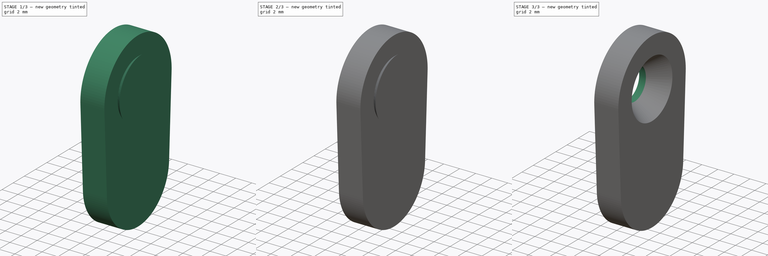
[diagram: build sequence overview — one tinted view per stage of 3, left to right]
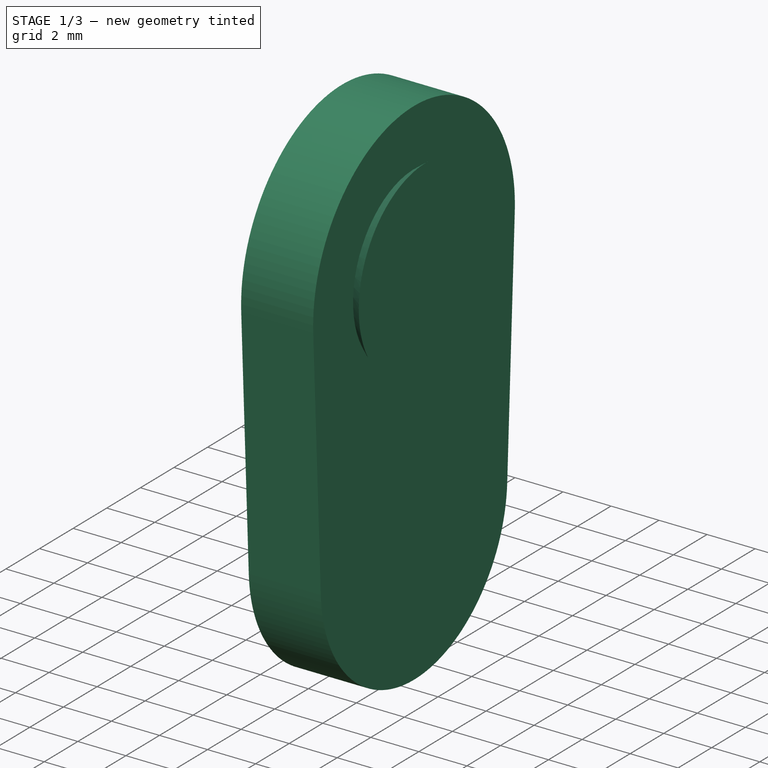
[diagram: stage 1 of 3 — iso view after this stage's code; geometry added in this stage tinted green]
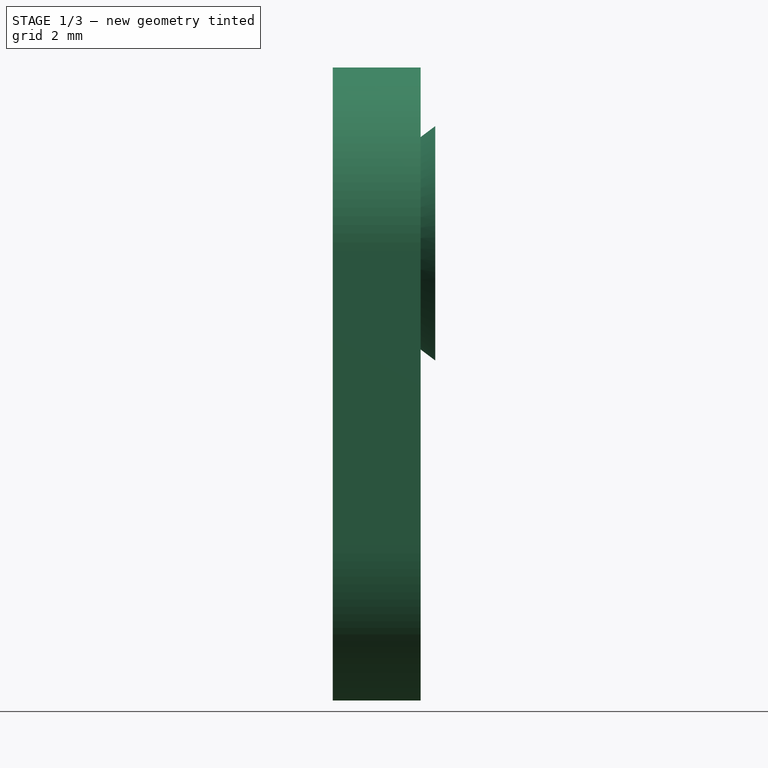
[diagram: stage 1 of 3 — front view after this stage's code; geometry added in this stage tinted green]
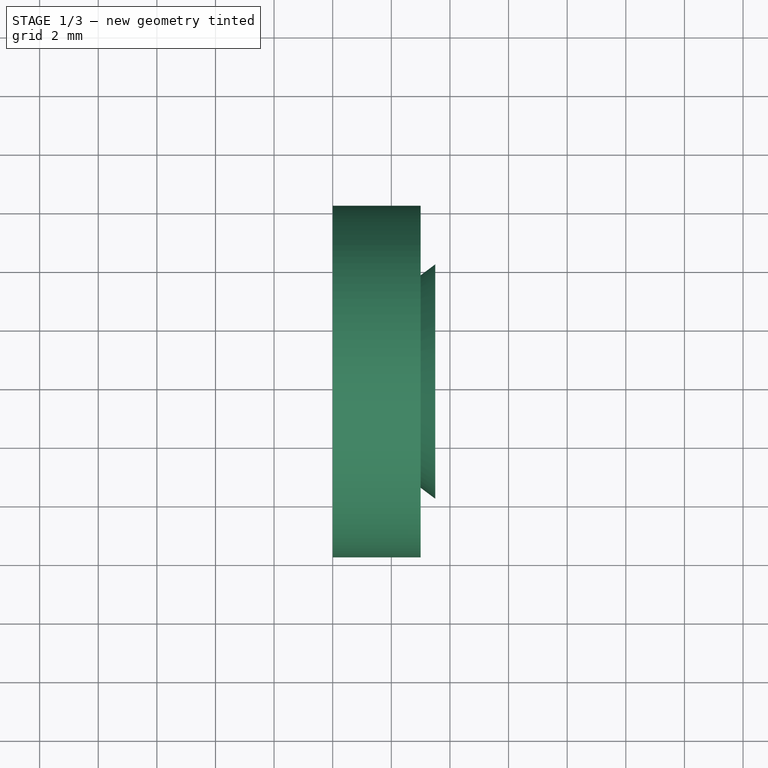
[diagram: stage 1 of 3 — top view after this stage's code; geometry added in this stage tinted green]
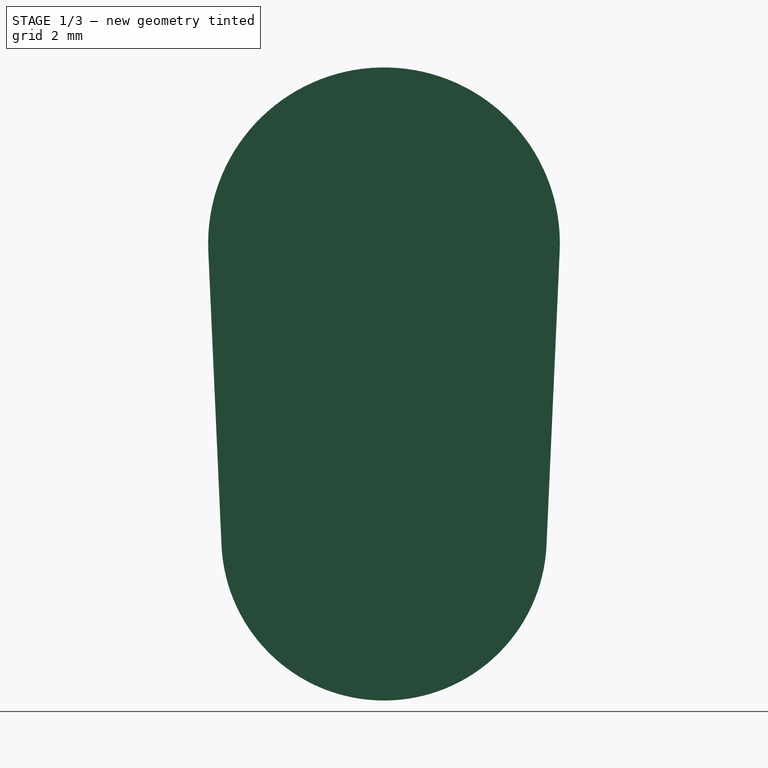
[diagram: stage 1 of 3 — right view after this stage's code; geometry added in this stage tinted green]
FCSTD DOCUMENT  (FreeCAD 0.16R6704 (Git))
Label: Halterung Front und Seitenscheiben oben
License: All rights reserved
LicenseURL: http://en.wikipedia.org/wiki/All_rights_reserved
objects: Sketcher::SketchObject×5, PartDesign::Pocket×2, PartDesign::Pad×1, Part::Loft×1, Part::Cut×1
note: 13 computed .brp shape members not serialized (recipe doc carries the construction recipe); baked Part::Feature solids carry a one-line shape summary decoded from their .brp

FEATURE [Sketcher::SketchObject] Sketch
  Placement = pos=(0,0,0) rot=(0.57735,0.57735,0.57735;2.0944rad)
  sketch-geometry (8):
    g0: Circle [constr] CenterX=0 CenterY=0 CenterZ=0 NormalX=0 NormalY=0 NormalZ=1 Radius=3.05
    g1: Circle [constr] CenterX=0 CenterY=0 CenterZ=0 NormalX=0 NormalY=0 NormalZ=1 Radius=5.55
    g2: Circle [constr] CenterX=0 CenterY=10.05 CenterZ=0 NormalX=0 NormalY=0 NormalZ=1 Radius=6
    g3: LineSegment [constr] StartX=0 StartY=4.05 StartZ=0 EndX=0 EndY=5.55 EndZ=0
    g4: LineSegment StartX=-5.99398 StartY=9.78137 StartZ=0 EndX=-5.54443 EndY=-0.248507 EndZ=0
    g5: LineSegment StartX=5.99398 StartY=9.78137 StartZ=0 EndX=5.54443 EndY=-0.248507 EndZ=0
    g6: ArcOfCircle CenterX=0 CenterY=0 CenterZ=0 NormalX=0 NormalY=0 NormalZ=1 Radius=5.55 StartAngle=3.18638 EndAngle=6.23839
    g7: ArcOfCircle CenterX=0 CenterY=10.05 CenterZ=0 NormalX=0 NormalY=0 NormalZ=1 Radius=6 StartAngle=6.2384 EndAngle=9.46956
  constraints (23):
    c: Coincident(g0,g-1)
    c: Coincident(g1,g-1)
    c: PointOnObject(g2,g-2)
    c: Radius(g0) = 3.05
    c: Radius(g2) = 6
    c: Radius(g1) = 5.55
    c: PointOnObject(g3,g2)
    c: PointOnObject(g3,g1)
    c: Vertical(g3)
    c: PointOnObject(g3,g-2)
    c: Coincident(g6,g-1)
    c: Coincident(g6,g4)
    c: Coincident(g6,g5)
    c: Coincident(g7,g2)
    c: Coincident(g7,g4)
    c: Coincident(g7,g5)
    c: Tangent(g4,g7)
    c: Tangent(g6,g4)
    c: Tangent(g5,g6)
    c: Tangent(g5,g7)
    c: PointOnObject(g5,g1)
    c: PointOnObject(g5,g2)
    c: DistanceY(g3,g3) = 1.5
FEATURE [PartDesign::Pad] Pad  label="Grundkoerper"
  Length = 3
  Length2 = 100
  Placement = pos=(0,0,0) rot=(0.57735,0.57735,0.57735;2.0944rad)
  Sketch = -> Sketch
  Type = 0
FEATURE [Sketcher::SketchObject] Sketch003
  Placement = pos=(0.5,0,0) rot=(0.57735,0.57735,0.57735;2.0944rad)
  sketch-geometry (1):
    g0: Circle CenterX=0 CenterY=10.05 CenterZ=0 NormalX=0 NormalY=0 NormalZ=1 Radius=1.75
  constraints (3):
    c: PointOnObject(g0,g-2)
    c: Radius(g0) = 1.75
    c: DistanceY(g-1,g0) = 10.05
FEATURE [Sketcher::SketchObject] Sketch004
  Placement = pos=(3.5,0,0) rot=(0.57735,0.57735,0.57735;2.0944rad)
  sketch-geometry (1):
    g0: Circle CenterX=0 CenterY=10.05 CenterZ=0 NormalX=0 NormalY=0 NormalZ=1 Radius=4
  constraints (3):
    c: PointOnObject(g0,g-2)
    c: DistanceY(g-1,g0) = 10.05
    c: Radius(g0) = 4
FEATURE [Part::Loft] Loft  label="Schraubenkopf"
  Closed = false
  Ruled = false
  Sections = -> [Sketch003,Sketch004]
  Solid = true
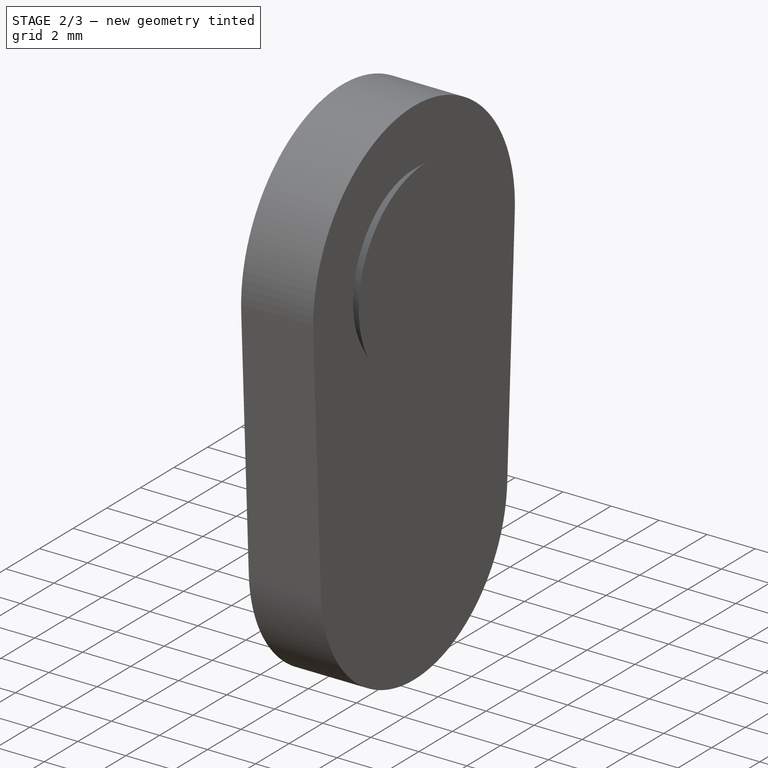
[diagram: stage 2 of 3 — iso view after this stage's code; geometry added in this stage tinted green]
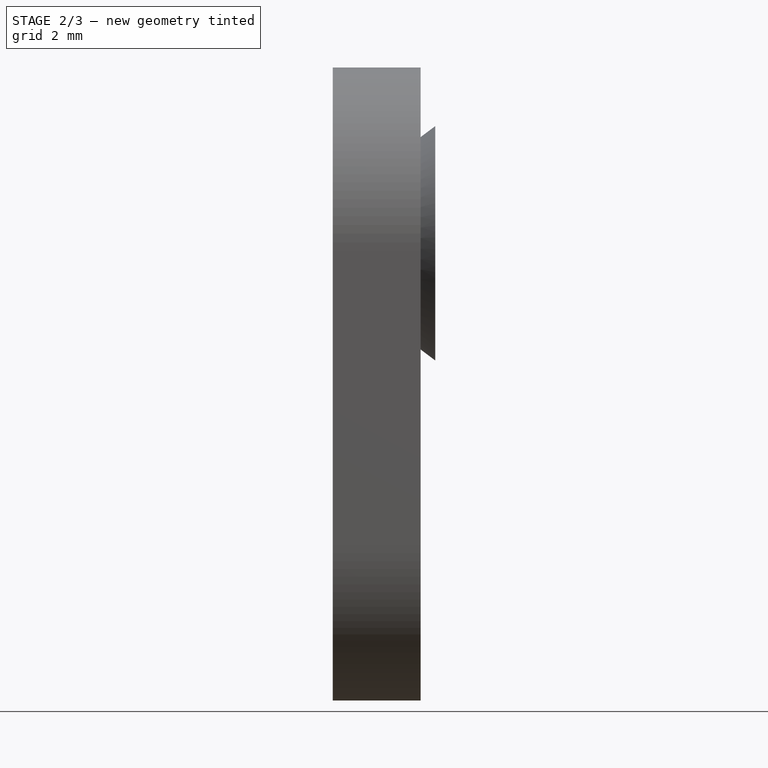
[diagram: stage 2 of 3 — front view after this stage's code; geometry added in this stage tinted green]
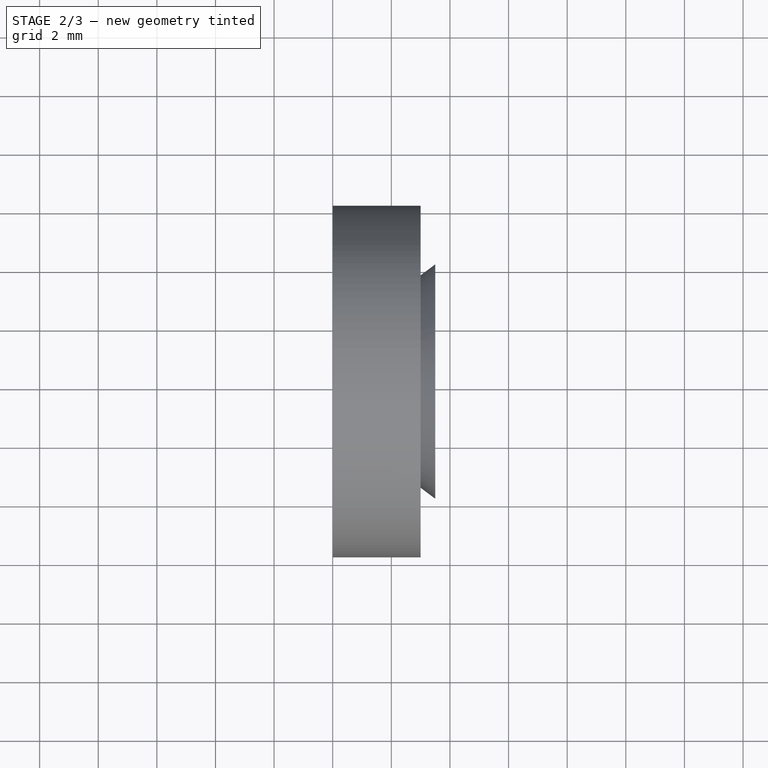
[diagram: stage 2 of 3 — top view after this stage's code; geometry added in this stage tinted green]
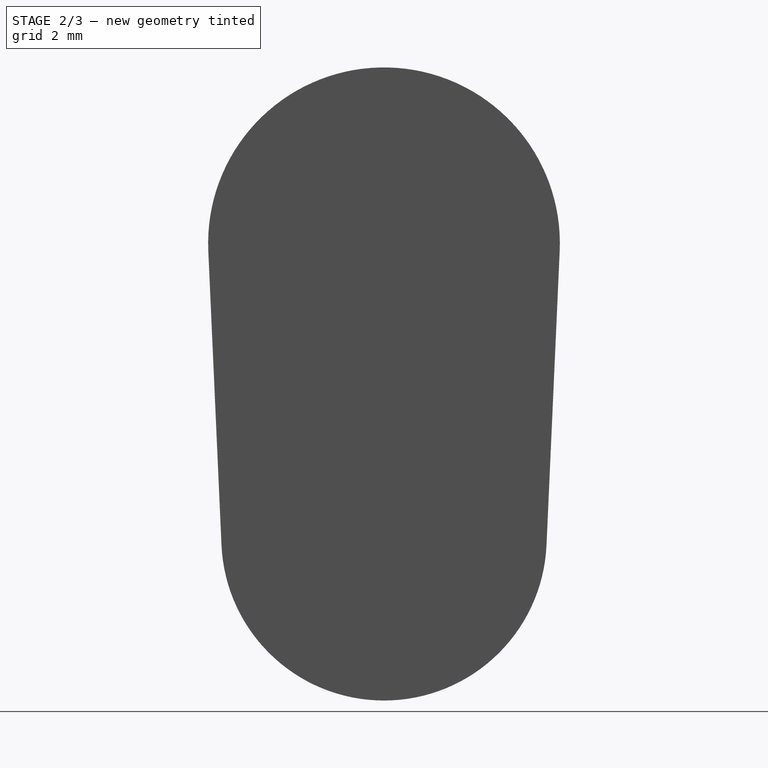
[diagram: stage 2 of 3 — right view after this stage's code; geometry added in this stage tinted green]
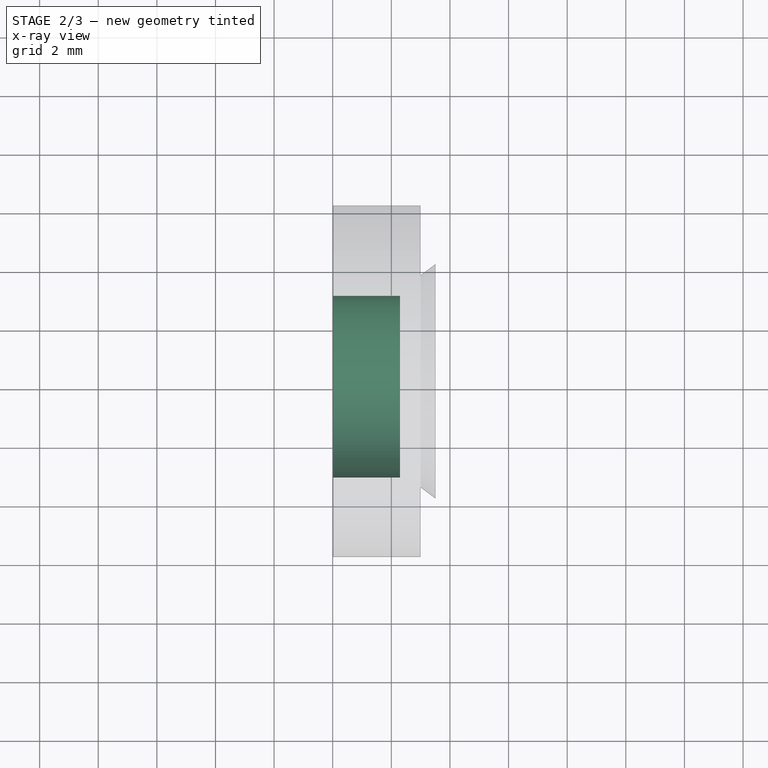
[diagram: stage 2 of 3 — x-ray composite at the top view; earlier geometry ghosted, this stage's added geometry solid]
FEATURE [Sketcher::SketchObject] Sketch001
  Placement = pos=(0,0,0) rot=(0.57735,0.57735,-0.57735;4.18879rad)
  Support = -> Pad [Face5]
  sketch-geometry (1):
    g0: Circle CenterX=0 CenterY=0 CenterZ=0 NormalX=0 NormalY=0 NormalZ=1 Radius=3.1
  constraints (2):
    c: Coincident(g0,g-1)
    c: Radius(g0) = 3.1
FEATURE [PartDesign::Pocket] Pocket  label="Tasche Magnet"
  Length = 2.3
  Placement = pos=(0,0,0) rot=(0.57735,0.57735,0.57735;2.0944rad)
  Sketch = -> Sketch001
  Type = 0
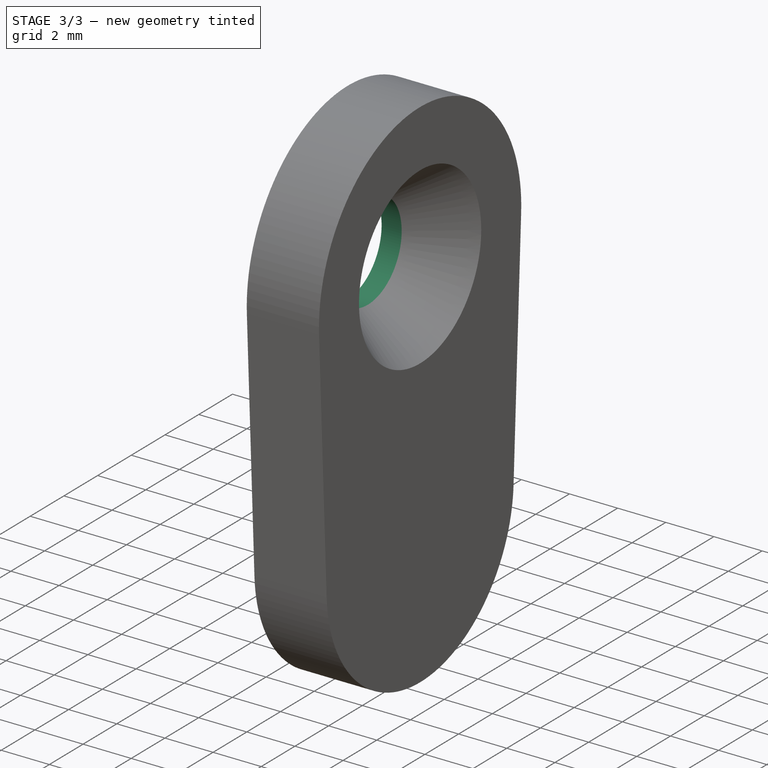
[diagram: stage 3 of 3 — iso view after this stage's code; geometry added in this stage tinted green]
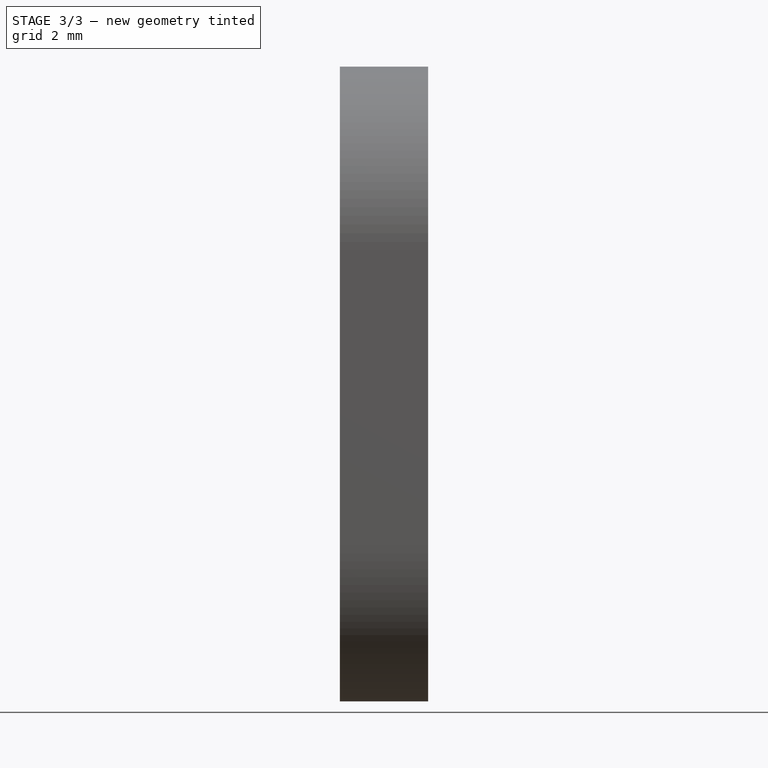
[diagram: stage 3 of 3 — front view after this stage's code; geometry added in this stage tinted green]
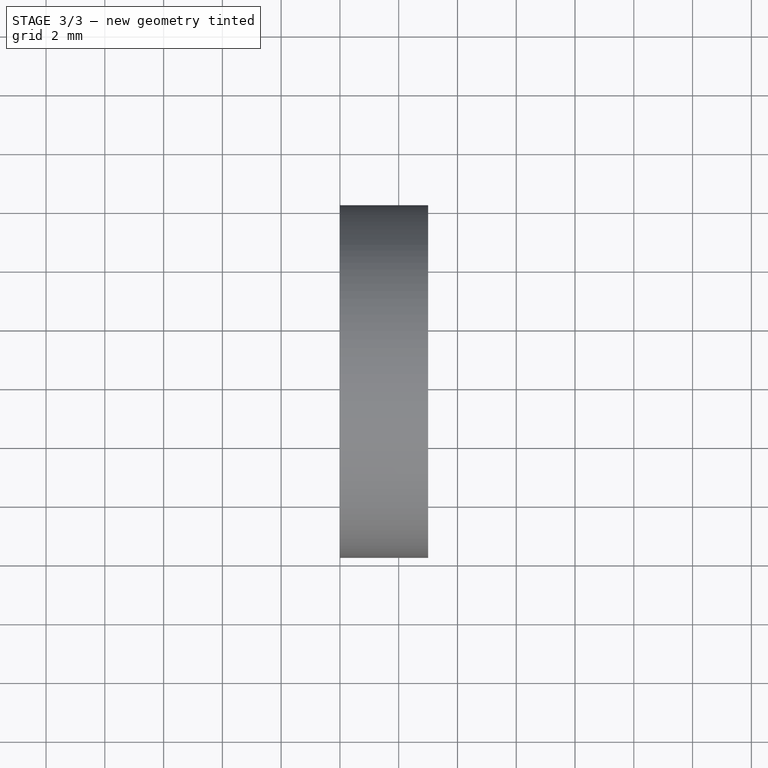
[diagram: stage 3 of 3 — top view after this stage's code; geometry added in this stage tinted green]
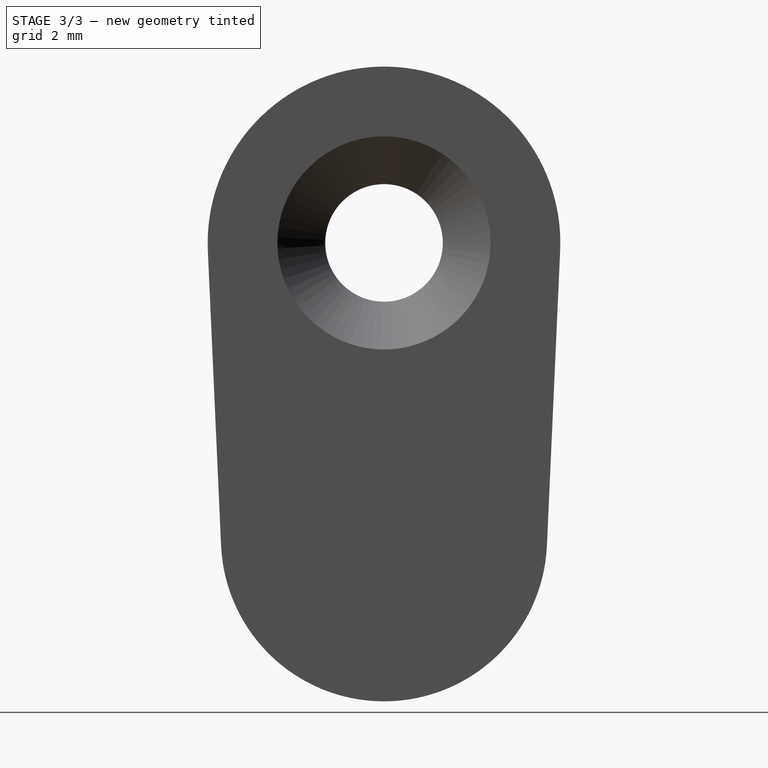
[diagram: stage 3 of 3 — right view after this stage's code; geometry added in this stage tinted green]
FEATURE [Sketcher::SketchObject] Sketch002
  ExternalGeometry = -> [Pocket]
  Placement = pos=(3,0,0) rot=(0.57735,0.57735,0.57735;2.0944rad)
  Support = -> Pocket [Face5]
  sketch-geometry (1):
    g0: Circle CenterX=0 CenterY=10.05 CenterZ=0 NormalX=0 NormalY=0 NormalZ=1 Radius=2
  constraints (2):
    c: Coincident(g0,g-3)
    c: Radius(g0) = 2
FEATURE [PartDesign::Pocket] Pocket001  label="Bohrung Schraube"
  Length = 5
  Placement = pos=(0,0,0) rot=(0.57735,0.57735,0.57735;2.0944rad)
  Sketch = -> Sketch002
  Type = 1
FEATURE [Part::Cut] Cut
  Base = -> Pocket001
  Tool = -> Loft
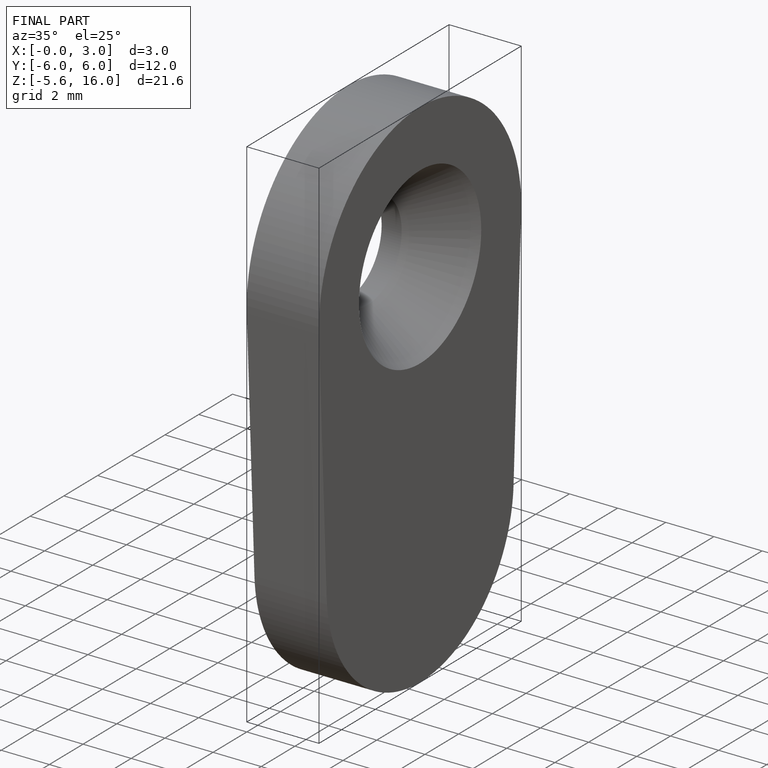
[diagram: finished part — iso view with bounding-box wireframe]
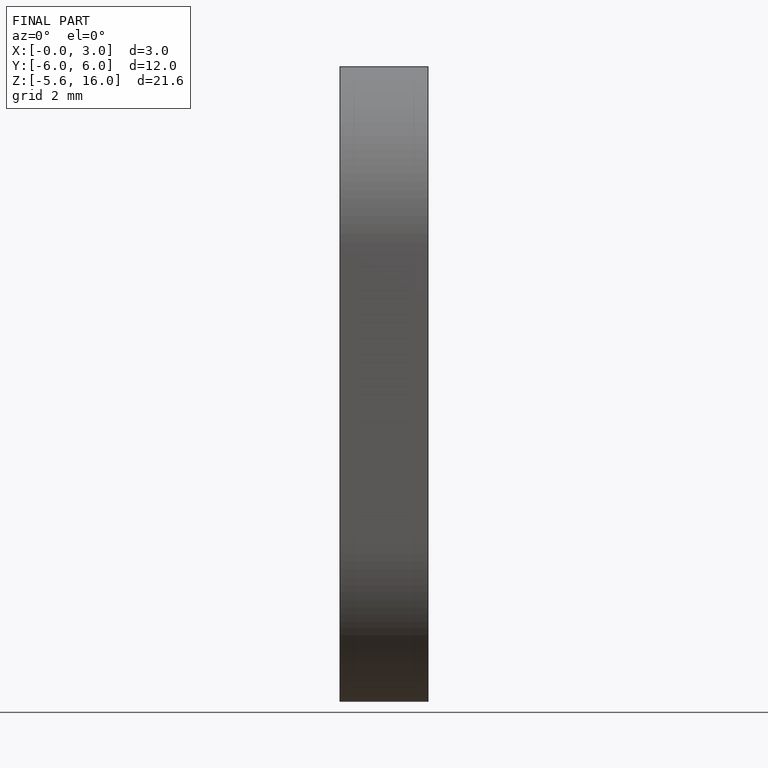
[diagram: finished part — front view with bounding-box wireframe]
